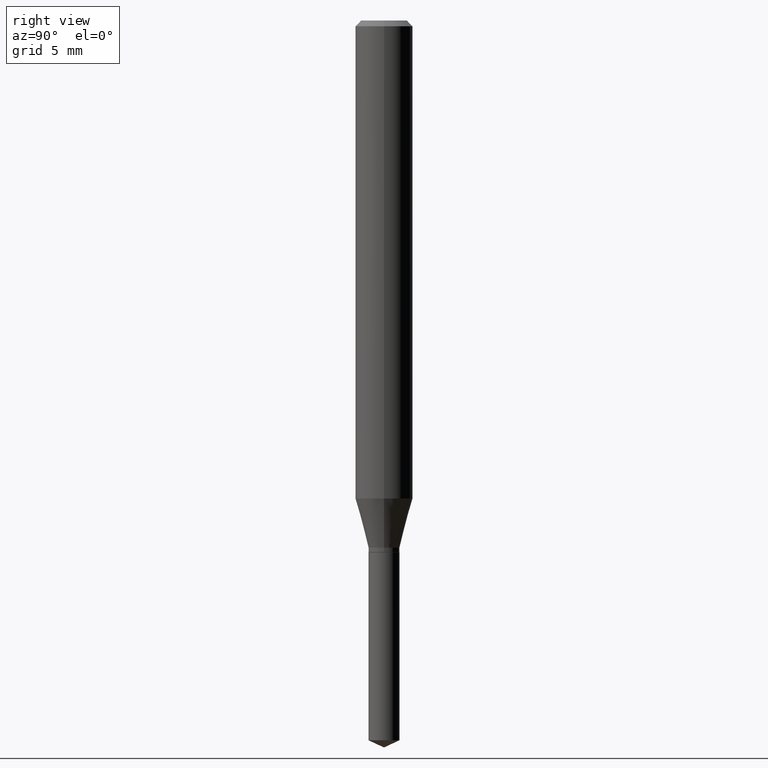
[diagram: clean part render]
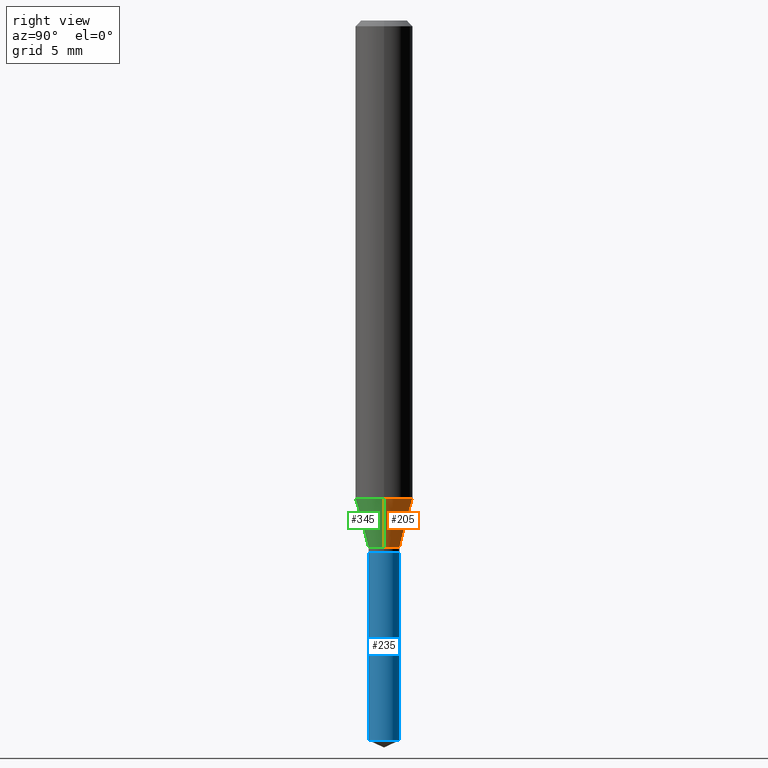
[diagram: same view with three faces highlighted in distinct colors, each labeled with its STEP entity id]
A machine part, right view with three faces highlighted in distinct colors.
Their STEP definitions:

[orange] entity #205 — the highlighted conical surface has half-angle 15 deg.
#16 = ORIENTED_EDGE ( 'NONE', *, *, #278, .F. ) ;
#22 = CONICAL_SURFACE ( 'NONE', #33, 0.03189999999999999780, 0.2617993877991501295 ) ;
#30 = AXIS2_PLACEMENT_3D ( 'NONE', #70, #67, #418 ) ;
#32 = DIRECTION ( 'NONE',  ( -2.445468806185136597E-29, 3.491481338843145583E-15, 1.000000000000000000 ) ) ;
#33 = AXIS2_PLACEMENT_3D ( 'NONE', #471, #440, #405 ) ;
#55 = VERTEX_POINT ( 'NONE', #320 ) ;
#67 = DIRECTION ( 'NONE',  ( -2.445468806185136597E-29, 3.491481338843145583E-15, 1.000000000000000000 ) ) ;
#70 = CARTESIAN_POINT ( 'NONE',  ( 2.405301542264094135E-29, -3.434133131391878685E-15, -0.9835748205745047379 ) ) ;
#127 = DIRECTION ( 'NONE',  ( 0.2588190451025214611, 1.565188264969621573E-15, 0.9659258262890682012 ) ) ;
#131 = AXIS2_PLACEMENT_3D ( 'NONE', #402, #32, #335 ) ;
#138 = CIRCLE ( 'NONE', #30, 0.05905000000000011628 ) ;
#140 = LINE ( 'NONE', #191, #404 ) ;
#170 = EDGE_LOOP ( 'NONE', ( #347, #215, #16, #207 ) ) ;
#182 = VERTEX_POINT ( 'NONE', #369 ) ;
#190 = EDGE_CURVE ( 'NONE', #55, #182, #330, .T. ) ;
#191 = CARTESIAN_POINT ( 'NONE',  ( -0.03189999999999999780, -3.561244971803456876E-15, -1.084899999999999975 ) ) ;
#205 = ADVANCED_FACE ( 'NONE', ( #480 ), #22, .T. ) ;
#207 = ORIENTED_EDGE ( 'NONE', *, *, #190, .F. ) ;
#215 = ORIENTED_EDGE ( 'NONE', *, *, #363, .T. ) ;
#247 = CARTESIAN_POINT ( 'NONE',  ( 0.03189999999999999780, -4.010664613929120071E-15, -1.084899999999999975 ) ) ;
#252 = EDGE_CURVE ( 'NONE', #55, #355, #349, .T. ) ;
#278 = EDGE_CURVE ( 'NONE', #182, #439, #138, .T. ) ;
#320 = CARTESIAN_POINT ( 'NONE',  ( 0.03189999999999999780, -4.010664613929120071E-15, -1.084899999999999975 ) ) ;
#330 = LINE ( 'NONE', #247, #374 ) ;
#335 = DIRECTION ( 'NONE',  ( 1.000000000000000000, -6.982962677686266711E-15, 0.000000000000000000 ) ) ;
#338 = DIRECTION ( 'NONE',  ( -0.2588190451025214611, 5.211531920934551042E-15, 0.9659258262890682012 ) ) ;
#340 = CARTESIAN_POINT ( 'NONE',  ( -0.05905000000000011628, -3.014557645925538404E-15, -0.9835748205745047379 ) ) ;
#347 = ORIENTED_EDGE ( 'NONE', *, *, #252, .T. ) ;
#349 = CIRCLE ( 'NONE', #131, 0.03189999999999999780 ) ;
#355 = VERTEX_POINT ( 'NONE', #420 ) ;
#363 = EDGE_CURVE ( 'NONE', #355, #439, #140, .T. ) ;
#369 = CARTESIAN_POINT ( 'NONE',  ( 0.05905000000000011628, -3.846477077509253606E-15, -0.9835748205745047379 ) ) ;
#374 = VECTOR ( 'NONE', #127, 39.37007874015747433 ) ;
#402 = CARTESIAN_POINT ( 'NONE',  ( 2.653089107830254266E-29, -3.787908104510928327E-15, -1.084899999999999975 ) ) ;
#404 = VECTOR ( 'NONE', #338, 39.37007874015747433 ) ;
#405 = DIRECTION ( 'NONE',  ( 1.000000000000000000, -6.982962677686266711E-15, 0.000000000000000000 ) ) ;
#418 = DIRECTION ( 'NONE',  ( 1.000000000000000000, -6.982962677686266711E-15, 0.000000000000000000 ) ) ;
#420 = CARTESIAN_POINT ( 'NONE',  ( -0.03189999999999999780, -3.577131211895192953E-15, -1.084899999999999975 ) ) ;
#439 = VERTEX_POINT ( 'NONE', #340 ) ;
#440 = DIRECTION ( 'NONE',  ( -2.445468806185136597E-29, 3.491481338843145583E-15, 1.000000000000000000 ) ) ;
#471 = CARTESIAN_POINT ( 'NONE',  ( 2.653089107830254266E-29, -3.787908104510928327E-15, -1.084899999999999975 ) ) ;
#480 = FACE_OUTER_BOUND ( 'NONE', #170, .T. ) ;

[blue] entity #235 — the highlighted cylindrical surface (edge-blend (fillet) strip) has radius 0.8103 mm, axis along (-0, 0, 1).
#24 = EDGE_CURVE ( 'NONE', #221, #392, #397, .T. ) ;
#28 = VERTEX_POINT ( 'NONE', #187 ) ;
#34 = DIRECTION ( 'NONE',  ( -6.982962677686266711E-15, -1.000000000000000000, 0.000000000000000000 ) ) ;
#45 = EDGE_LOOP ( 'NONE', ( #162, #396, #282, #204 ) ) ;
#57 = CARTESIAN_POINT ( 'NONE',  ( 2.676565608369631794E-29, -3.821426325363822773E-15, -1.094499999999999806 ) ) ;
#83 = CIRCLE ( 'NONE', #264, 0.03189999999999999780 ) ;
#94 = CARTESIAN_POINT ( 'NONE',  ( -2.227565094181651199E-16, -0.03190000000000382113, -1.094499999999999806 ) ) ;
#98 = DIRECTION ( 'NONE',  ( -2.445470214571802396E-29, 3.491479321953280158E-15, 1.000000000000000000 ) ) ;
#100 = CARTESIAN_POINT ( 'NONE',  ( 2.266631327074986663E-16, 0.03189999999999617447, -1.094500000000000028 ) ) ;
#112 = CARTESIAN_POINT ( 'NONE',  ( 2.266631327075081820E-16, 0.03189999999999483526, -1.481224785704855496 ) ) ;
#136 = LINE ( 'NONE', #94, #266 ) ;
#141 = CARTESIAN_POINT ( 'NONE',  ( 3.622289553047519167E-29, -5.171667917939139796E-15, -1.481224785704855496 ) ) ;
#160 = EDGE_CURVE ( 'NONE', #392, #198, #181, .T. ) ;
#162 = ORIENTED_EDGE ( 'NONE', *, *, #24, .T. ) ;
#173 = EDGE_CURVE ( 'NONE', #28, #198, #83, .T. ) ;
#175 = CARTESIAN_POINT ( 'NONE',  ( -2.227565094181557522E-16, -0.03190000000000518116, -1.481224785704855496 ) ) ;
#176 = EDGE_CURVE ( 'NONE', #221, #28, #136, .T. ) ;
#181 = LINE ( 'NONE', #100, #438 ) ;
#187 = CARTESIAN_POINT ( 'NONE',  ( -2.227565094181651199E-16, -0.03190000000000382113, -1.094499999999999806 ) ) ;
#198 = VERTEX_POINT ( 'NONE', #476 ) ;
#204 = ORIENTED_EDGE ( 'NONE', *, *, #176, .F. ) ;
#211 = DIRECTION ( 'NONE',  ( -2.445470214571802116E-29, 3.491479321953280158E-15, 1.000000000000000000 ) ) ;
#213 = CYLINDRICAL_SURFACE ( 'NONE', #290, 0.03189999999999999780 ) ;
#214 = CARTESIAN_POINT ( 'NONE',  ( 2.676565608369631794E-29, -3.821426325363822773E-15, -1.094499999999999806 ) ) ;
#221 = VERTEX_POINT ( 'NONE', #175 ) ;
#235 = ADVANCED_FACE ( 'NONE', ( #409 ), #213, .T. ) ;
#238 = DIRECTION ( 'NONE',  ( -6.982962677686266711E-15, -1.000000000000000000, 4.281893406997278296E-15 ) ) ;
#242 = DIRECTION ( 'NONE',  ( -2.445470214571802396E-29, 3.491479321953280158E-15, 1.000000000000000000 ) ) ;
#264 = AXIS2_PLACEMENT_3D ( 'NONE', #57, #211, #364 ) ;
#266 = VECTOR ( 'NONE', #242, 39.37007874015748143 ) ;
#282 = ORIENTED_EDGE ( 'NONE', *, *, #173, .F. ) ;
#290 = AXIS2_PLACEMENT_3D ( 'NONE', #214, #437, #238 ) ;
#364 = DIRECTION ( 'NONE',  ( -6.982962677686266711E-15, -1.000000000000000000, 4.281893406997278296E-15 ) ) ;
#371 = AXIS2_PLACEMENT_3D ( 'NONE', #141, #377, #34 ) ;
#377 = DIRECTION ( 'NONE',  ( -2.445470214571802116E-29, 3.491479321953280158E-15, 1.000000000000000000 ) ) ;
#392 = VERTEX_POINT ( 'NONE', #112 ) ;
#396 = ORIENTED_EDGE ( 'NONE', *, *, #160, .T. ) ;
#397 = CIRCLE ( 'NONE', #371, 0.03189999999999999780 ) ;
#409 = FACE_OUTER_BOUND ( 'NONE', #45, .T. ) ;
#437 = DIRECTION ( 'NONE',  ( -2.445470214571802116E-29, 3.491479321953280158E-15, 1.000000000000000000 ) ) ;
#438 = VECTOR ( 'NONE', #98, 39.37007874015748143 ) ;
#476 = CARTESIAN_POINT ( 'NONE',  ( 2.266631327075082313E-16, 0.03189999999999617447, -1.094500000000000028 ) ) ;

[green] entity #345 — the highlighted conical surface has half-angle 15 deg.
#1 = DIRECTION ( 'NONE',  ( 1.000000000000000000, -6.982962677686266711E-15, 0.000000000000000000 ) ) ;
#17 = EDGE_CURVE ( 'NONE', #355, #55, #117, .T. ) ;
#19 = ORIENTED_EDGE ( 'NONE', *, *, #190, .T. ) ;
#48 = AXIS2_PLACEMENT_3D ( 'NONE', #192, #457, #119 ) ;
#55 = VERTEX_POINT ( 'NONE', #320 ) ;
#72 = FACE_OUTER_BOUND ( 'NONE', #276, .T. ) ;
#74 = DIRECTION ( 'NONE',  ( -2.445468806185136597E-29, 3.491481338843145583E-15, 1.000000000000000000 ) ) ;
#90 = ORIENTED_EDGE ( 'NONE', *, *, #363, .F. ) ;
#106 = CARTESIAN_POINT ( 'NONE',  ( 2.653089107830254266E-29, -3.787908104510928327E-15, -1.084899999999999975 ) ) ;
#117 = CIRCLE ( 'NONE', #353, 0.03189999999999999780 ) ;
#119 = DIRECTION ( 'NONE',  ( 1.000000000000000000, -6.982962677686266711E-15, 0.000000000000000000 ) ) ;
#127 = DIRECTION ( 'NONE',  ( 0.2588190451025214611, 1.565188264969621573E-15, 0.9659258262890682012 ) ) ;
#140 = LINE ( 'NONE', #191, #404 ) ;
#182 = VERTEX_POINT ( 'NONE', #369 ) ;
#190 = EDGE_CURVE ( 'NONE', #55, #182, #330, .T. ) ;
#191 = CARTESIAN_POINT ( 'NONE',  ( -0.03189999999999999780, -3.561244971803456876E-15, -1.084899999999999975 ) ) ;
#192 = CARTESIAN_POINT ( 'NONE',  ( 2.405301542264094135E-29, -3.434133131391878685E-15, -0.9835748205745047379 ) ) ;
#244 = CARTESIAN_POINT ( 'NONE',  ( 2.653089107830254266E-29, -3.787908104510928327E-15, -1.084899999999999975 ) ) ;
#247 = CARTESIAN_POINT ( 'NONE',  ( 0.03189999999999999780, -4.010664613929120071E-15, -1.084899999999999975 ) ) ;
#253 = DIRECTION ( 'NONE',  ( -2.445468806185136597E-29, 3.491481338843145583E-15, 1.000000000000000000 ) ) ;
#276 = EDGE_LOOP ( 'NONE', ( #90, #423, #19, #322 ) ) ;
#285 = AXIS2_PLACEMENT_3D ( 'NONE', #106, #253, #296 ) ;
#296 = DIRECTION ( 'NONE',  ( 1.000000000000000000, -6.982962677686266711E-15, 0.000000000000000000 ) ) ;
#320 = CARTESIAN_POINT ( 'NONE',  ( 0.03189999999999999780, -4.010664613929120071E-15, -1.084899999999999975 ) ) ;
#322 = ORIENTED_EDGE ( 'NONE', *, *, #475, .F. ) ;
#330 = LINE ( 'NONE', #247, #374 ) ;
#338 = DIRECTION ( 'NONE',  ( -0.2588190451025214611, 5.211531920934551042E-15, 0.9659258262890682012 ) ) ;
#340 = CARTESIAN_POINT ( 'NONE',  ( -0.05905000000000011628, -3.014557645925538404E-15, -0.9835748205745047379 ) ) ;
#345 = ADVANCED_FACE ( 'NONE', ( #72 ), #367, .T. ) ;
#353 = AXIS2_PLACEMENT_3D ( 'NONE', #244, #74, #1 ) ;
#355 = VERTEX_POINT ( 'NONE', #420 ) ;
#363 = EDGE_CURVE ( 'NONE', #355, #439, #140, .T. ) ;
#367 = CONICAL_SURFACE ( 'NONE', #285, 0.03189999999999999780, 0.2617993877991501295 ) ;
#369 = CARTESIAN_POINT ( 'NONE',  ( 0.05905000000000011628, -3.846477077509253606E-15, -0.9835748205745047379 ) ) ;
#374 = VECTOR ( 'NONE', #127, 39.37007874015747433 ) ;
#404 = VECTOR ( 'NONE', #338, 39.37007874015747433 ) ;
#420 = CARTESIAN_POINT ( 'NONE',  ( -0.03189999999999999780, -3.577131211895192953E-15, -1.084899999999999975 ) ) ;
#423 = ORIENTED_EDGE ( 'NONE', *, *, #17, .T. ) ;
#439 = VERTEX_POINT ( 'NONE', #340 ) ;
#457 = DIRECTION ( 'NONE',  ( -2.445468806185136597E-29, 3.491481338843145583E-15, 1.000000000000000000 ) ) ;
#459 = CIRCLE ( 'NONE', #48, 0.05905000000000011628 ) ;
#475 = EDGE_CURVE ( 'NONE', #439, #182, #459, .T. ) ;